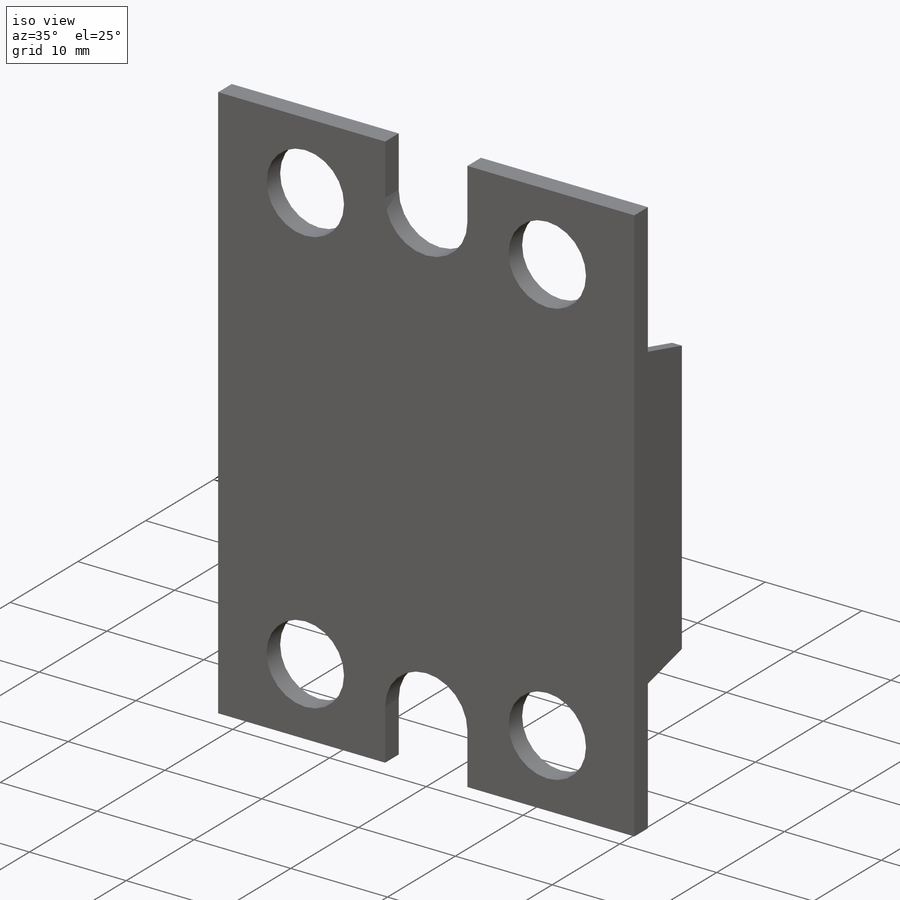
[diagram: iso view]
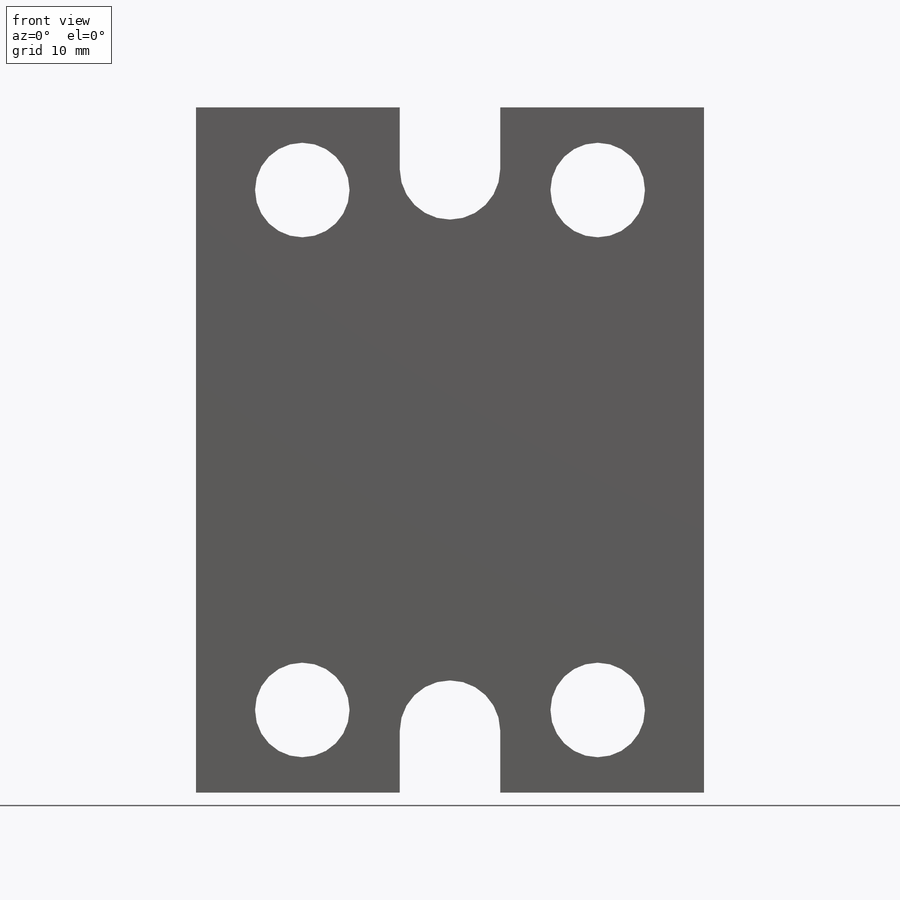
[diagram: front view]
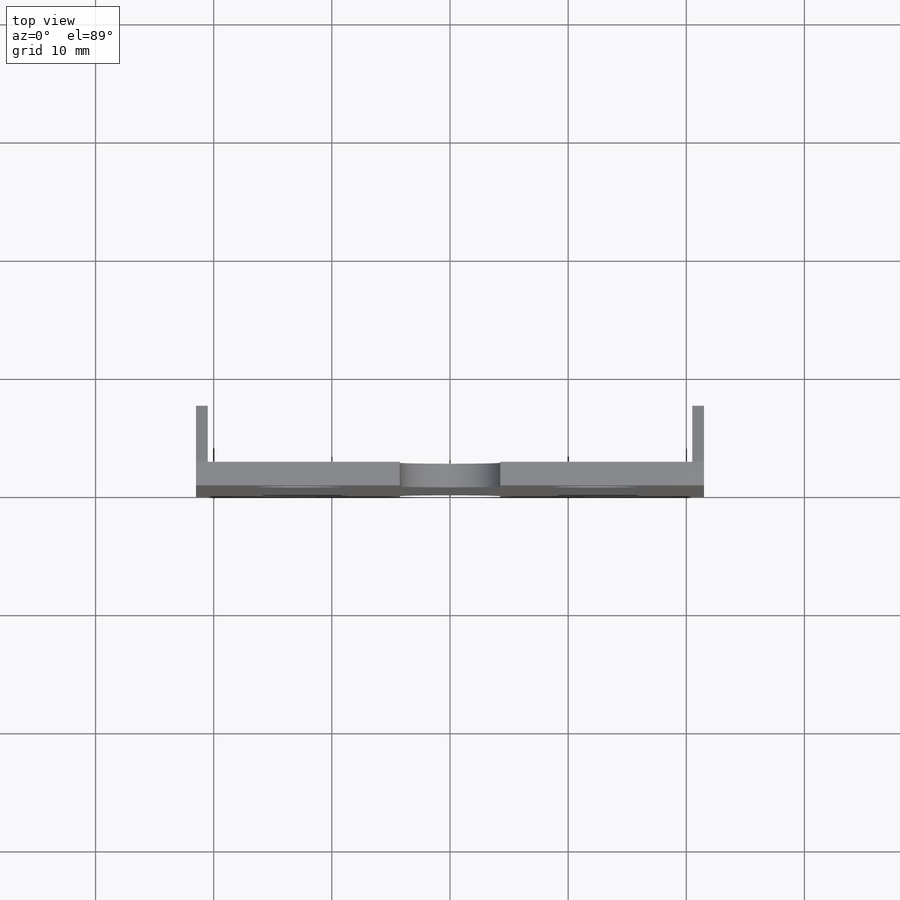
[diagram: top view]
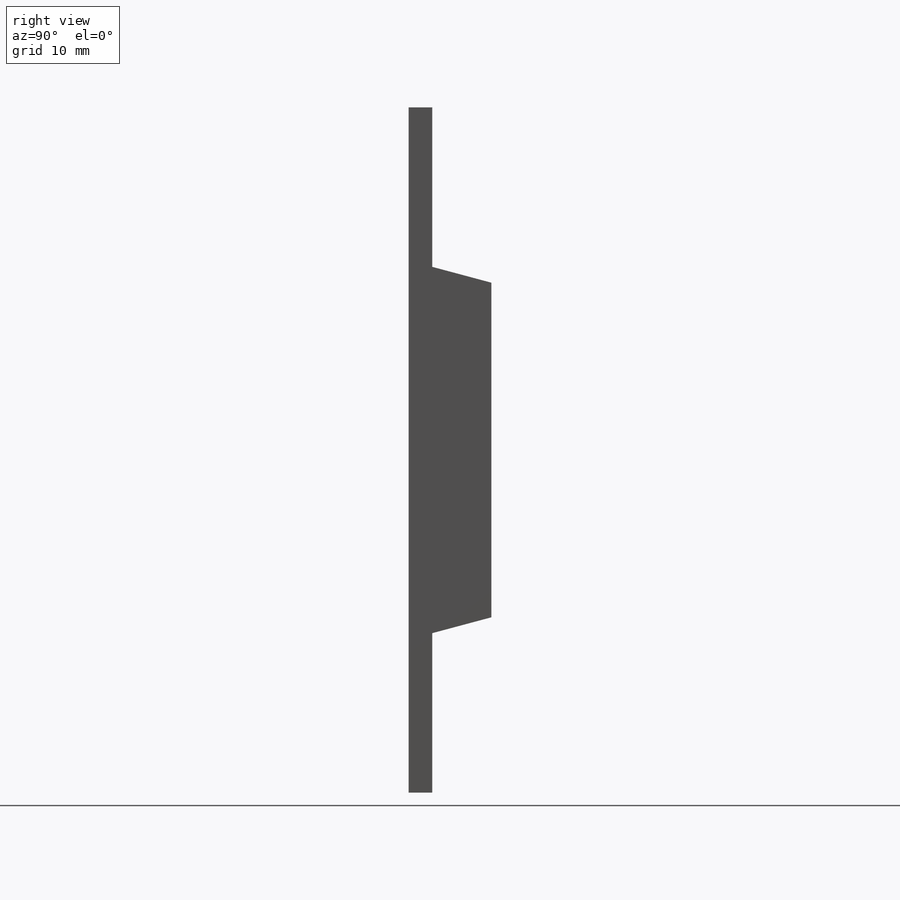
[diagram: right view]
SOLIDWORKS PART (.sldprt)
format: sldprt  version: not decoded by parser v0  size: 242,176 bytes
history: native  units: mm
features: sketch x7, extrude x3, cut_extrude x2, material x1, plane x1, hole x1 (+13 scaffold rows collapsed)
feature tree (28):
  scaffold x13  (default folders/planes/origin — collapsed)
  material  "Acrylic (Medium-high impact)"
  plane  "Plane1"
  sketch  "Sketch1"
  extrude  "Boss-Extrude1"  Depth=2mm
  sketch  "Sketch2"
  cut_extrude  "Cut-Extrude1"  Depth=2mm
  sketch  "Sketch3"
  cut_extrude  "Cut-Extrude2"  Depth=2mm
  sketch  "Sketch4"
  extrude  "Boss-Extrude2"  Depth=5mm
  sketch  "Sketch5"
  extrude  "Boss-Extrude3"  Depth=5mm
  hole  "Ø8.0 (8) Diameter Hole1"  Diameter=8mm Depth=7mm
  sketch  "Sketch7"
  sketch  "Sketch6"  dims[hole-wizard template sketch: 60 standard entries collapsed; hole parameters kept: c18.Thru Hole Depth=7.0mm]
decode coverage: 7 of 13 modeling features carry decoded parameters
note: ~ marks probable driven/reference dimensions
note: suppression state not decoded; provenance and decode notes live in map.json
